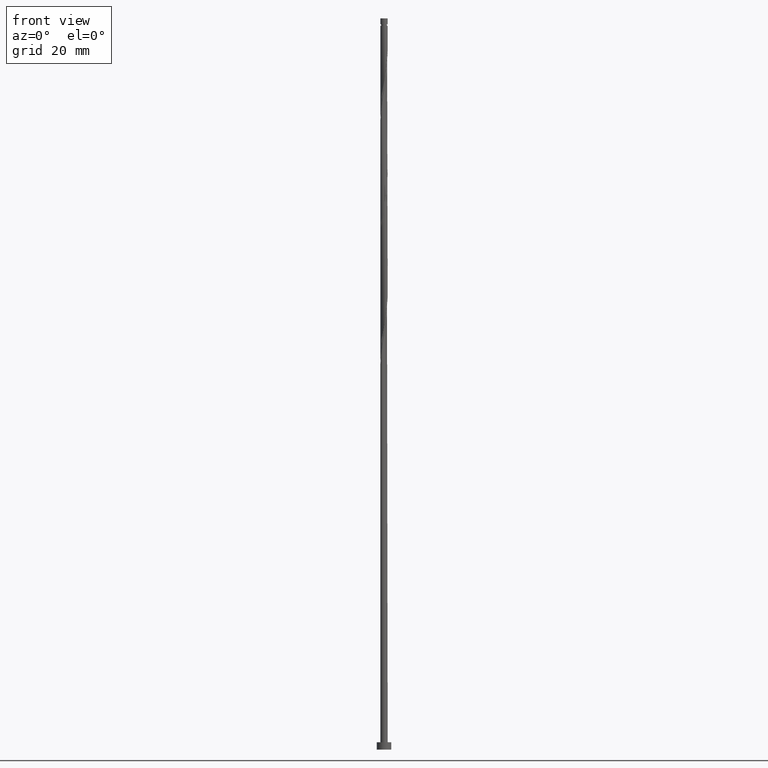
[diagram: clean part render]
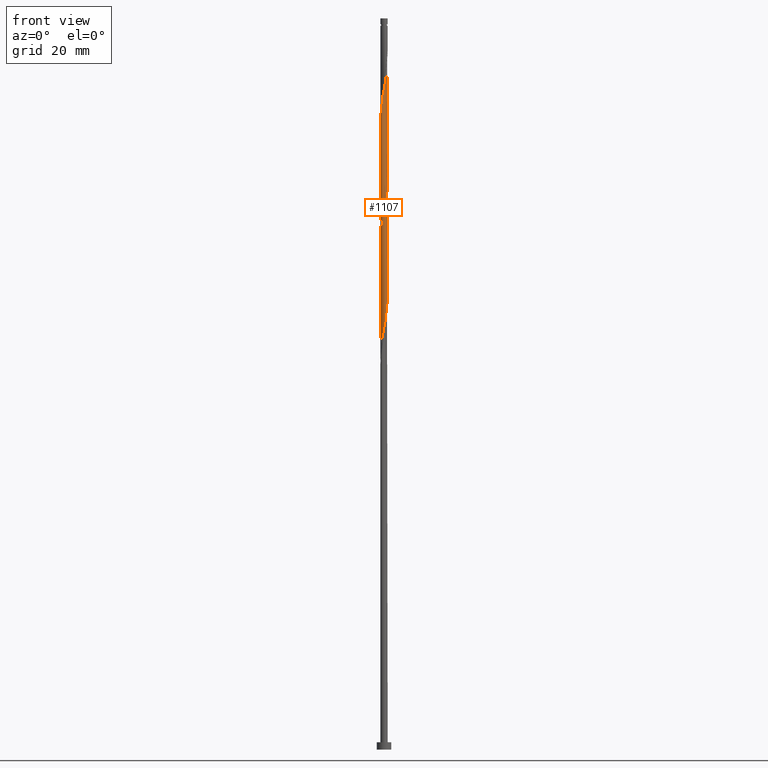
[diagram: same view with one face highlighted and labeled with its STEP entity id]
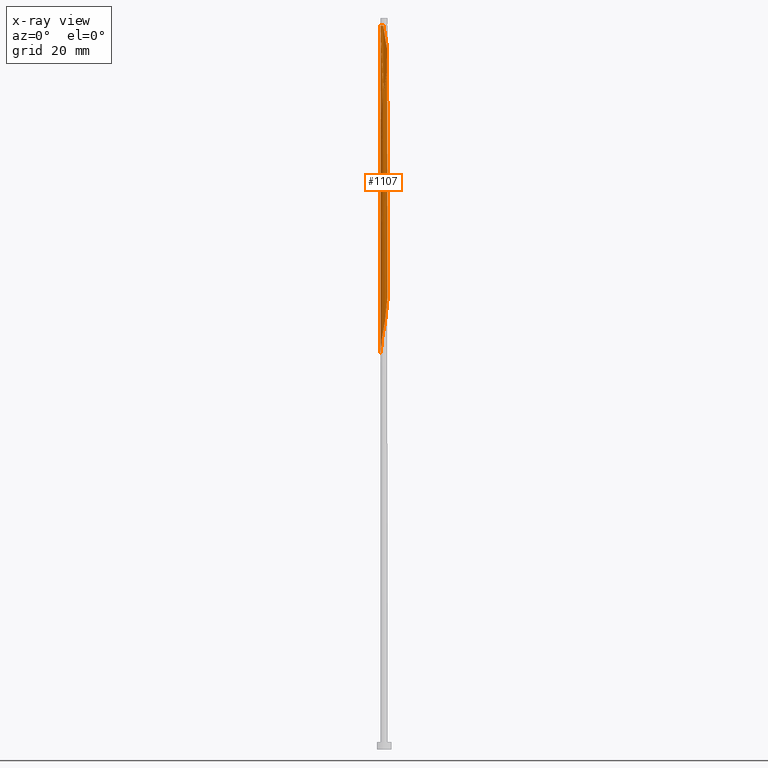
[diagram: x-ray of the same camera — body ghosted, the highlighted face saturated]
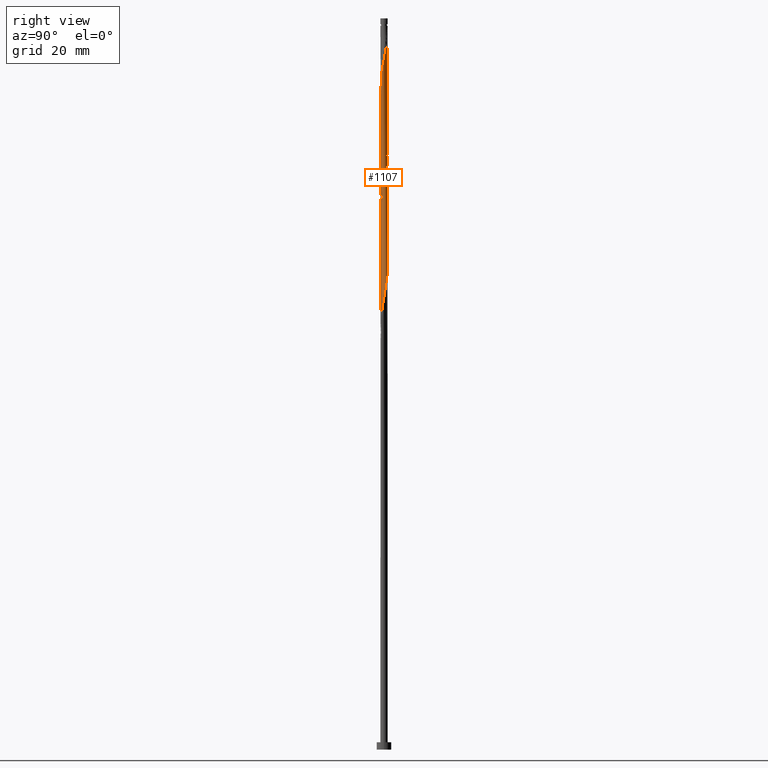
[diagram: same view with one face highlighted and labeled with its STEP entity id]
A machine part, front view. The second image highlights one B-rep face of the part: STEP entity #1107.
The next image is the same camera in x-ray: the body ghosted, the highlighted face saturated — about 0% of this face is hidden behind the body in this view.
A second angle (right view) of the same face is appended — the face is thin or edge-on in the first view.
In plain terms, the highlighted cylindrical surface (bore or boss wall) has radius 1 mm, axis along (-0, -0, -1).
Its self-contained STEP definition (entity closure, byte-faithful):
#5 = CARTESIAN_POINT ( 'NONE',  ( 0.8364044564148269689, -0.5637020182777602306, 154.2596511026889630 ) ) ;
#8 = LINE ( 'NONE', #1142, #980 ) ;
#9 = CARTESIAN_POINT ( 'NONE',  ( -0.1989974874213603084, 0.9800000000002634382, 198.0096511026889630 ) ) ;
#14 = CARTESIAN_POINT ( 'NONE',  ( -0.8336771183575261146, -0.5522521727681060089, 143.8429844360222205 ) ) ;
#29 = ORIENTED_EDGE ( 'NONE', *, *, #607, .F. ) ;
#32 = CARTESIAN_POINT ( 'NONE',  ( 0.8364044564148269689, -0.5637020182777602306, 120.9263177693555917 ) ) ;
#75 = CARTESIAN_POINT ( 'NONE',  ( -0.9538014837673646218, 0.3280169350569821507, 172.3152066582444490 ) ) ;
#84 = CARTESIAN_POINT ( 'NONE',  ( -0.1928297432528254529, 0.9900247826383195004, 166.7596511026889345 ) ) ;
#95 = CARTESIAN_POINT ( 'NONE',  ( 0.5637020182777592314, -0.8364044564148276351, 183.4263177693555633 ) ) ;
#102 = CARTESIAN_POINT ( 'NONE',  ( 0.3280169350569818176, -0.9538014837673647328, 182.0374288804667344 ) ) ;
#117 = CARTESIAN_POINT ( 'NONE',  ( 1.000000000000001554, 5.607669166357607745E-17, 157.4065510912323589 ) ) ;
#118 = VERTEX_POINT ( 'NONE', #1417 ) ;
#122 = CARTESIAN_POINT ( 'NONE',  ( 0.5522521727681063419, 0.8336771183575261146, 193.8429844360222774 ) ) ;
#125 = CARTESIAN_POINT ( 'NONE',  ( 0.9900247826383195004, 0.1928297432528248700, 158.4263177693556486 ) ) ;
#129 = CARTESIAN_POINT ( 'NONE',  ( 0.4424964979548745569, -0.9063824962005139207, 151.4818733249111347 ) ) ;
#136 = CARTESIAN_POINT ( 'NONE',  ( 1.000000000000001776, -0.1005037815259264833, 156.8731247220430305 ) ) ;
#154 = CARTESIAN_POINT ( 'NONE',  ( -0.9063824962005139207, -0.4424964979548745569, 143.1485399915778487 ) ) ;
#162 = CARTESIAN_POINT ( 'NONE',  ( 0.4458594766673714127, 0.8951029700910952958, 163.2874288804666492 ) ) ;
#169 = CARTESIAN_POINT ( 'NONE',  ( 1.006198516232635010, -0.06997803978568657712, 123.7040955471333916 ) ) ;
#177 = VERTEX_POINT ( 'NONE', #1604 ) ;
#185 = AXIS2_PLACEMENT_3D ( 'NONE', #1011, #1517, #1382 ) ;
#202 = CARTESIAN_POINT ( 'NONE',  ( 0.6623368793961497136, 0.7492061519980818263, 128.5652066582444490 ) ) ;
#207 = CARTESIAN_POINT ( 'NONE',  ( 0.9981116494354769220, 0.06142585173356915340, 124.3985399915777634 ) ) ;
#211 = VECTOR ( 'NONE', #764, 1000.000000000000000 ) ;
#215 = CARTESIAN_POINT ( 'NONE',  ( -0.06142585173356963218, 0.9981116494354769220, 166.0652066582445059 ) ) ;
#219 = CARTESIAN_POINT ( 'NONE',  ( -0.3176631206038505462, -0.9482036394194164330, 178.5652066582445059 ) ) ;
#228 = CARTESIAN_POINT ( 'NONE',  ( 0.6620078475813382379, 0.7609717405145381974, 193.1485399915778203 ) ) ;
#242 = EDGE_CURVE ( 'NONE', #1333, #118, #560, .T. ) ;
#243 = CARTESIAN_POINT ( 'NONE',  ( 0.4458594766673704135, -0.8951029700910959619, 182.7318733249111347 ) ) ;
#262 = CARTESIAN_POINT ( 'NONE',  ( -0.9900247826383195004, -0.1928297432528252309, 141.7596511026889630 ) ) ;
#272 = CARTESIAN_POINT ( 'NONE',  ( 1.000000000000001554, 5.607669166357607745E-17, 157.4065510912323589 ) ) ;
#274 = DIRECTION ( 'NONE',  ( -1.000000000000000000, 0.000000000000000000, 0.000000000000000000 ) ) ;
#280 = CARTESIAN_POINT ( 'NONE',  ( -0.7492061519980821593, 0.6623368793961494916, 136.8985399915777919 ) ) ;
#289 = CARTESIAN_POINT ( 'NONE',  ( 0.9482036394194166551, 0.3176631206038493249, 125.7874288804666776 ) ) ;
#318 = CARTESIAN_POINT ( 'NONE',  ( -0.5522521727681061199, 0.8336771183575261146, 168.8429844360221921 ) ) ;
#328 = CARTESIAN_POINT ( 'NONE',  ( 0.3176631206038498245, -0.9482036394194163220, 117.4540955471333206 ) ) ;
#331 = CARTESIAN_POINT ( 'NONE',  ( -1.000000000000001776, -0.1005037815259243739, 172.4795108166681246 ) ) ;
#337 = CARTESIAN_POINT ( 'NONE',  ( -0.8951029700910955178, 0.4458594766673708576, 171.6207622138000204 ) ) ;
#338 = CARTESIAN_POINT ( 'NONE',  ( -1.000000000000001332, -4.411366410867933746E-16, 171.9460844474787677 ) ) ;
#343 = CARTESIAN_POINT ( 'NONE',  ( 0.9799999999999995381, -0.1989974874213341627, 123.0096511026889061 ) ) ;
#345 = CARTESIAN_POINT ( 'NONE',  ( 0.9063824962005133656, -0.4424964979548750010, 186.2040955471333064 ) ) ;
#351 = CARTESIAN_POINT ( 'NONE',  ( 0.7609717405145386415, -0.6620078475813377938, 184.8152066582445059 ) ) ;
#354 = CARTESIAN_POINT ( 'NONE',  ( 0.9482036394194166551, 0.3176631206038493249, 159.1207622138000204 ) ) ;
#364 = CARTESIAN_POINT ( 'NONE',  ( -0.4424964979548748900, 0.9063824962005138097, 134.8152066582444775 ) ) ;
#372 = CARTESIAN_POINT ( 'NONE',  ( -0.6623368793961496026, -0.7492061519980819373, 145.2318733249110778 ) ) ;
#382 = FACE_OUTER_BOUND ( 'NONE', #1402, .T. ) ;
#388 = CARTESIAN_POINT ( 'NONE',  ( -0.3280169350569823727, -0.9538014837673646218, 147.3152066582445059 ) ) ;
#393 = CARTESIAN_POINT ( 'NONE',  ( -0.9538014837673646218, 0.3280169350569821507, 138.9818733249111631 ) ) ;
#399 = CARTESIAN_POINT ( 'NONE',  ( 0.7609717405145394187, 0.6620078475813374608, 161.2040955471334200 ) ) ;
#408 = CARTESIAN_POINT ( 'NONE',  ( 0.6620078475813374608, -0.7609717405145394187, 119.5374288804667202 ) ) ;
#437 = CARTESIAN_POINT ( 'NONE',  ( -0.4458594766673708576, -0.8951029700910955178, 113.2874288804666918 ) ) ;
#441 = CARTESIAN_POINT ( 'NONE',  ( 0.3176631206038506017, 0.9482036394194162110, 195.2318733249111631 ) ) ;
#445 = CARTESIAN_POINT ( 'NONE',  ( -0.9063824962005139207, -0.4424964979548745569, 109.8152066582444775 ) ) ;
#450 = CARTESIAN_POINT ( 'NONE',  ( -0.4424964979548748900, 0.9063824962005138097, 168.1485399915778203 ) ) ;
#453 = CARTESIAN_POINT ( 'NONE',  ( -0.1928297432528255917, -0.9900247826383195004, 179.2596511026889345 ) ) ;
#462 = CARTESIAN_POINT ( 'NONE',  ( -0.06997803978568375993, 1.006198516232634343, 197.3152066582445343 ) ) ;
#507 = EDGE_CURVE ( 'NONE', #1333, #1051, #1182, .T. ) ;
#508 = CYLINDRICAL_SURFACE ( 'NONE', #185, 1.000000000000000000 ) ;
#512 = CARTESIAN_POINT ( 'NONE',  ( 0.3176631206038498245, -0.9482036394194163220, 150.7874288804667060 ) ) ;
#517 = CARTESIAN_POINT ( 'NONE',  ( 0.06997803978568620242, 1.006198516232634566, 165.3707622138000772 ) ) ;
#527 = CARTESIAN_POINT ( 'NONE',  ( 0.5522521727681058978, -0.8336771183575262256, 118.8429844360222489 ) ) ;
#558 = CARTESIAN_POINT ( 'NONE',  ( -0.9981116494354769220, -0.06142585173356951422, 107.7318733249111347 ) ) ;
#560 = LINE ( 'NONE', #1530, #211 ) ;
#566 = CARTESIAN_POINT ( 'NONE',  ( 0.9900247826383195004, 0.1928297432528248700, 125.0929844360222631 ) ) ;
#572 = CARTESIAN_POINT ( 'NONE',  ( -1.000000000000000666, 0.1005037815259310491, 173.5397913887097445 ) ) ;
#583 = CARTESIAN_POINT ( 'NONE',  ( 0.06142585173357048567, 0.9981116494354768109, 196.6207622138000772 ) ) ;
#586 = VERTEX_POINT ( 'NONE', #1236 ) ;
#589 = CARTESIAN_POINT ( 'NONE',  ( -0.6620078475813377938, -0.7609717405145386415, 176.4818733249111347 ) ) ;
#600 = CARTESIAN_POINT ( 'NONE',  ( 0.9981116494354769220, 0.06142585173356915340, 157.7318733249111347 ) ) ;
#603 = CARTESIAN_POINT ( 'NONE',  ( 0.7492061519980819373, -0.6623368793961497136, 153.5652066582443638 ) ) ;
#607 = EDGE_CURVE ( 'NONE', #970, #118, #835, .T. ) ;
#611 = CARTESIAN_POINT ( 'NONE',  ( 0.06142585173356921585, -0.9981116494354769220, 149.3985399915777634 ) ) ;
#614 = CARTESIAN_POINT ( 'NONE',  ( 0.000000000000000000, 0.000000000000000000, 198.0096511026889345 ) ) ;
#617 = CARTESIAN_POINT ( 'NONE',  ( -0.7609717405145394187, -0.6620078475813375718, 144.5374288804667344 ) ) ;
#623 = CARTESIAN_POINT ( 'NONE',  ( -0.9482036394194163220, -0.3176631206038499355, 142.4540955471333348 ) ) ;
#632 = CARTESIAN_POINT ( 'NONE',  ( -0.6620078475813376828, 0.7609717405145390856, 169.5374288804666776 ) ) ;
#637 = CARTESIAN_POINT ( 'NONE',  ( 0.9063824962005141428, 0.4424964979548740018, 126.4818733249111204 ) ) ;
#644 = ORIENTED_EDGE ( 'NONE', *, *, #1573, .T. ) ;
#651 = EDGE_CURVE ( 'NONE', #177, #970, #1014, .T. ) ;
#673 = CARTESIAN_POINT ( 'NONE',  ( 0.8336771183575261146, 0.5522521727681060089, 127.1763177693555491 ) ) ;
#686 = CARTESIAN_POINT ( 'NONE',  ( -0.7609717405145394187, -0.6620078475813375718, 111.2040955471333774 ) ) ;
#692 = CARTESIAN_POINT ( 'NONE',  ( 0.1928297432528249533, -0.9900247826383195004, 116.7596511026889345 ) ) ;
#696 = CARTESIAN_POINT ( 'NONE',  ( -0.06142585173356988199, -0.9981116494354768109, 179.9540955471333348 ) ) ;
#705 = CARTESIAN_POINT ( 'NONE',  ( 0.9482036394194164330, -0.3176631206038506017, 186.8985399915777919 ) ) ;
#711 = CARTESIAN_POINT ( 'NONE',  ( -0.9799999999999995381, -0.1989974874213340239, 173.0096511026889630 ) ) ;
#715 = ORIENTED_EDGE ( 'NONE', *, *, #1040, .T. ) ;
#719 = CARTESIAN_POINT ( 'NONE',  ( 0.9900247826383192784, -0.1928297432528260358, 187.5929844360222774 ) ) ;
#732 = CARTESIAN_POINT ( 'NONE',  ( -0.8951029700910955178, 0.4458594766673708576, 138.2874288804666207 ) ) ;
#741 = CARTESIAN_POINT ( 'NONE',  ( 1.000000000000001554, 5.607669166357607745E-17, 157.4065510912323589 ) ) ;
#746 = CARTESIAN_POINT ( 'NONE',  ( 0.6620078475813374608, -0.7609717405145394187, 152.8707622137999920 ) ) ;
#751 = CARTESIAN_POINT ( 'NONE',  ( -0.5522521727681061199, 0.8336771183575261146, 135.5096511026889345 ) ) ;
#761 = CARTESIAN_POINT ( 'NONE',  ( 0.9538014837673641777, -0.3280169350569828168, 122.3152066582445059 ) ) ;
#764 = DIRECTION ( 'NONE',  ( -0.000000000000000000, -0.000000000000000000, -1.000000000000000000 ) ) ;
#800 = CARTESIAN_POINT ( 'NONE',  ( -0.9799999999999995381, 0.1989974874213340517, 173.0096511026889345 ) ) ;
#805 = CARTESIAN_POINT ( 'NONE',  ( -0.5637020182777598976, -0.8364044564148271910, 112.5929844360222916 ) ) ;
#816 = CARTESIAN_POINT ( 'NONE',  ( -0.8364044564148271910, 0.5637020182777597865, 170.9263177693556486 ) ) ;
#818 = CARTESIAN_POINT ( 'NONE',  ( -0.9538014837673647328, -0.3280169350569818176, 173.7040955471334200 ) ) ;
#822 = CARTESIAN_POINT ( 'NONE',  ( -1.000000000000001332, -0.03074195165766996016, 107.5697147792604937 ) ) ;
#833 = CARTESIAN_POINT ( 'NONE',  ( 0.7492061519980829365, 0.6623368793961487144, 192.4540955471333632 ) ) ;
#835 =( BOUNDED_CURVE ( )  B_SPLINE_CURVE ( 2, ( #272, #136, #1009, #1249, #1136, #5, #603, #746, #884, #129, #512, #1513, #611, #1494, #984, #388, #1521, #878, #372, #617, #14, #154, #623, #262, #1141, #858, #1362, #393, #732, #1384, #280, #1487, #751, #364, #1264, #848, #1357, #1148, #1155, #1394, #946, #1439, #202, #892, #673, #637, #289, #566, #207, #169, #343, #761, #1325, #32, #1274, #408, #527, #1202, #328, #692, #1584, #1073, #937, #1186, #437, #805, #1317, #686, #1077, #445, #1447, #1036, #558, #822, #1064 ),
 .UNSPECIFIED., .F., .T. ) 
 B_SPLINE_CURVE_WITH_KNOTS ( ( 3, 2, 2, 2, 2, 2, 2, 2, 2, 2, 2, 2, 2, 2, 2, 2, 2, 2, 2, 2, 2, 2, 2, 2, 2, 2, 2, 2, 2, 2, 2, 2, 2, 2, 2, 2, 2, 3 ),
 ( 0.5545317669814459061, 0.5625000000000000000, 0.5729166666666666297, 0.5833333333333333703, 0.5937500000000000000, 0.6041666666666666297, 0.6145833333333333703, 0.6250000000000000000, 0.6354166666666666297, 0.6458333333333333703, 0.6562500000000000000, 0.6666666666666666297, 0.6770833333333333703, 0.6875000000000000000, 0.6979166666666666297, 0.7083333333333333703, 0.7187500000000000000, 0.7291666666666666297, 0.7395833333333333703, 0.7500000000000000000, 0.7604166666666666297, 0.7708333333333333703, 0.7812500000000000000, 0.7916666666666666297, 0.8020833333333333703, 0.8125000000000000000, 0.8229166666666666297, 0.8333333333333333703, 0.8437500000000000000, 0.8541666666666666297, 0.8645833333333333703, 0.8750000000000000000, 0.8854166666666666297, 0.8958333333333333703, 0.9062500000000000000, 0.9166666666666667407, 0.9270833333333334814, 0.9295317669814457950 ),
 .UNSPECIFIED. ) 
 CURVE ( )  GEOMETRIC_REPRESENTATION_ITEM ( )  RATIONAL_B_SPLINE_CURVE ( ( 0.9062941362546322877, 0.9031415850403359258, 0.9090909090909117252, 0.9013135103398300929, 0.9090909090909117252, 0.9013135103398300929, 0.9090909090909117252, 0.9013135103398300929, 0.9090909090909117252, 0.9013135103398300929, 0.9090909090909117252, 0.9013135103398300929, 0.9090909090909117252, 0.9013135103398300929, 0.9090909090909117252, 0.9013135103398300929, 0.9090909090909117252, 0.9013135103398300929, 0.9090909090909117252, 0.9013135103398300929, 0.9090909090909117252, 0.9013135103398300929, 0.9090909090909117252, 0.9013135103398300929, 0.9090909090909117252, 0.9013135103398300929, 0.9090909090909117252, 0.9013135103398300929, 0.9090909090909117252, 0.9013135103398300929, 0.9090909090909117252, 0.9013135103398300929, 0.9090909090909117252, 0.9013135103398300929, 0.9090909090909117252, 0.9013135103398300929, 0.9090909090909117252, 0.9013135103398300929, 0.9090909090909117252, 0.9013135103398300929, 0.9090909090909117252, 0.9013135103398300929, 0.9090909090909117252, 0.9013135103398300929, 0.9090909090909117252, 0.9013135103398300929, 0.9090909090909117252, 0.9013135103398300929, 0.9090909090909117252, 0.9013135103398300929, 0.9090909090909117252, 0.9013135103398300929, 0.9090909090909117252, 0.9013135103398300929, 0.9090909090909117252, 0.9013135103398300929, 0.9090909090909117252, 0.9013135103398300929, 0.9090909090909117252, 0.9013135103398300929, 0.9090909090909117252, 0.9013135103398300929, 0.9090909090909117252, 0.9013135103398300929, 0.9090909090909117252, 0.9013135103398300929, 0.9090909090909117252, 0.9013135103398300929, 0.9090909090909117252, 0.9013135103398300929, 0.9090909090909117252, 0.9013135103398300929, 0.9090909090909117252, 0.9072628343904057813, 0.9062941362546323987 ) ) 
 REPRESENTATION_ITEM ( '' )  );
#842 = CARTESIAN_POINT ( 'NONE',  ( -0.8364044564148275240, -0.5637020182777594535, 175.0929844360222774 ) ) ;
#845 = ORIENTED_EDGE ( 'NONE', *, *, #1393, .F. ) ;
#848 = CARTESIAN_POINT ( 'NONE',  ( -0.1928297432528254529, 0.9900247826383195004, 133.4263177693556202 ) ) ;
#858 = CARTESIAN_POINT ( 'NONE',  ( -1.006198516232635010, 0.06997803978568647998, 140.3707622138000204 ) ) ;
#878 = CARTESIAN_POINT ( 'NONE',  ( -0.5637020182777598976, -0.8364044564148271910, 145.9263177693555917 ) ) ;
#884 = CARTESIAN_POINT ( 'NONE',  ( 0.5522521727681058978, -0.8336771183575262256, 152.1763177693556202 ) ) ;
#892 = CARTESIAN_POINT ( 'NONE',  ( 0.7609717405145394187, 0.6620078475813374608, 127.8707622138000630 ) ) ;
#902 = CARTESIAN_POINT ( 'NONE',  ( 0.8336771183575261146, 0.5522521727681060089, 160.5096511026888777 ) ) ;
#922 = CIRCLE ( 'NONE', #1211, 0.9999999999999878986 ) ;
#937 = CARTESIAN_POINT ( 'NONE',  ( -0.1989974874213340794, -0.9799999999999995381, 114.6763177693555775 ) ) ;
#941 = CARTESIAN_POINT ( 'NONE',  ( 0.1928297432528261190, 0.9900247826383192784, 195.9263177693555917 ) ) ;
#946 = CARTESIAN_POINT ( 'NONE',  ( 0.4458594766673714127, 0.8951029700910952958, 129.9540955471333632 ) ) ;
#953 = CARTESIAN_POINT ( 'NONE',  ( -0.3176631206038499911, 0.9482036394194163220, 167.4540955471333348 ) ) ;
#954 = CARTESIAN_POINT ( 'NONE',  ( 0.9799999999999995381, 0.1989974874213338851, 189.6763177693555633 ) ) ;
#964 = CARTESIAN_POINT ( 'NONE',  ( 0.6623368793961489365, -0.7492061519980826034, 184.1207622138000488 ) ) ;
#970 = VERTEX_POINT ( 'NONE', #741 ) ;
#974 = CARTESIAN_POINT ( 'NONE',  ( -0.8951029700910957398, -0.4458594766673707466, 174.3985399915777919 ) ) ;
#980 = VECTOR ( 'NONE', #1004, 1000.000000000000000 ) ;
#984 = CARTESIAN_POINT ( 'NONE',  ( -0.1989974874213340794, -0.9799999999999995381, 148.0096511026889345 ) ) ;
#1004 = DIRECTION ( 'NONE',  ( -0.000000000000000000, -0.000000000000000000, -1.000000000000000000 ) ) ;
#1009 = CARTESIAN_POINT ( 'NONE',  ( 0.9799999999999995381, -0.1989974874213341627, 156.3429844360221921 ) ) ;
#1011 = CARTESIAN_POINT ( 'NONE',  ( 0.000000000000000000, 0.000000000000000000, 200.0000000000000000 ) ) ;
#1014 =( BOUNDED_CURVE ( )  B_SPLINE_CURVE ( 2, ( #1591, #572, #800, #75, #337, #816, #1434, #632, #318, #450, #953, #84, #215, #517, #1577, #1458, #162, #1025, #1528, #399, #902, #1225, #354, #125, #600, #1239, #117 ),
 .UNSPECIFIED., .F., .T. ) 
 B_SPLINE_CURVE_WITH_KNOTS ( ( 3, 2, 2, 2, 2, 2, 2, 2, 2, 2, 2, 2, 2, 3 ),
 ( 0.4295317669814462391, 0.4375000000000000000, 0.4479166666666666852, 0.4583333333333333148, 0.4687500000000000000, 0.4791666666666666852, 0.4895833333333333148, 0.5000000000000000000, 0.5104166666666666297, 0.5208333333333333703, 0.5312500000000000000, 0.5416666666666666297, 0.5520833333333333703, 0.5545317669814459061 ),
 .UNSPECIFIED. ) 
 CURVE ( )  GEOMETRIC_REPRESENTATION_ITEM ( )  RATIONAL_B_SPLINE_CURVE ( ( 0.9062941362546321766, 0.9031415850403363699, 0.9090909090909117252, 0.9013135103398300929, 0.9090909090909117252, 0.9013135103398300929, 0.9090909090909117252, 0.9013135103398300929, 0.9090909090909117252, 0.9013135103398300929, 0.9090909090909117252, 0.9013135103398300929, 0.9090909090909117252, 0.9013135103398300929, 0.9090909090909117252, 0.9013135103398300929, 0.9090909090909117252, 0.9013135103398300929, 0.9090909090909117252, 0.9013135103398300929, 0.9090909090909117252, 0.9013135103398300929, 0.9090909090909117252, 0.9013135103398300929, 0.9090909090909117252, 0.9072628343904056702, 0.9062941362546322877 ) ) 
 REPRESENTATION_ITEM ( '' )  );
#1025 = CARTESIAN_POINT ( 'NONE',  ( 0.5637020182777602306, 0.8364044564148269689, 162.5929844360222489 ) ) ;
#1036 = CARTESIAN_POINT ( 'NONE',  ( -0.9900247826383195004, -0.1928297432528252309, 108.4263177693556202 ) ) ;
#1040 = EDGE_CURVE ( 'NONE', #1203, #1051, #922, .T. ) ;
#1051 = VERTEX_POINT ( 'NONE', #9 ) ;
#1064 = CARTESIAN_POINT ( 'NONE',  ( -1.000000000000001554, -2.990756888724057300E-16, 107.4065510912324015 ) ) ;
#1068 = CARTESIAN_POINT ( 'NONE',  ( 0.4424964979548751121, 0.9063824962005133656, 194.5374288804667344 ) ) ;
#1073 = CARTESIAN_POINT ( 'NONE',  ( -0.06997803978568652161, -1.006198516232635010, 115.3707622138000630 ) ) ;
#1077 = CARTESIAN_POINT ( 'NONE',  ( -0.8336771183575261146, -0.5522521727681060089, 110.5096511026888919 ) ) ;
#1083 = LINE ( 'NONE', #1223, #1450 ) ;
#1089 = CARTESIAN_POINT ( 'NONE',  ( 0.06997803978568582772, -1.006198516232634343, 180.6485399915777919 ) ) ;
#1095 = ORIENTED_EDGE ( 'NONE', *, *, #1573, .F. ) ;
#1107 = ADVANCED_FACE ( 'NONE', ( #382 ), #508, .T. ) ;
#1131 = DIRECTION ( 'NONE',  ( -0.000000000000000000, -0.000000000000000000, -1.000000000000000000 ) ) ;
#1136 = CARTESIAN_POINT ( 'NONE',  ( 0.8951029700910952958, -0.4458594766673714127, 154.9540955471333348 ) ) ;
#1141 = CARTESIAN_POINT ( 'NONE',  ( -0.9981116494354769220, -0.06142585173356951422, 141.0652066582444775 ) ) ;
#1142 = CARTESIAN_POINT ( 'NONE',  ( 1.000000000000000000, 1.224646799147353207E-16, 200.0000000000000000 ) ) ;
#1148 = CARTESIAN_POINT ( 'NONE',  ( 0.06997803978568620242, 1.006198516232634566, 132.0374288804667060 ) ) ;
#1155 = CARTESIAN_POINT ( 'NONE',  ( 0.1989974874213342459, 0.9799999999999995381, 131.3429844360222489 ) ) ;
#1182 =( BOUNDED_CURVE ( )  B_SPLINE_CURVE ( 2, ( #338, #331, #711, #818, #974, #842, #1204, #589, #1611, #1349, #219, #453, #696, #1089, #1478, #102, #243, #95, #964, #351, #1321, #345, #705, #719, #1580, #1221, #954, #1228, #1588, #1603, #833, #228, #122, #1068, #441, #941, #583, #462, #1442 ),
 .UNSPECIFIED., .F., .T. ) 
 B_SPLINE_CURVE_WITH_KNOTS ( ( 3, 2, 2, 2, 2, 2, 2, 2, 2, 2, 2, 2, 2, 2, 2, 2, 2, 2, 2, 3 ),
 ( 0.5545317669814456840, 0.5625000000000000000, 0.5729166666666667407, 0.5833333333333332593, 0.5937500000000000000, 0.6041666666666667407, 0.6145833333333332593, 0.6250000000000000000, 0.6354166666666667407, 0.6458333333333332593, 0.6562499999999998890, 0.6666666666666667407, 0.6770833333333331483, 0.6874999999999998890, 0.6979166666666666297, 0.7083333333333331483, 0.7187499999999998890, 0.7291666666666666297, 0.7395833333333331483, 0.7499999999999998890 ),
 .UNSPECIFIED. ) 
 CURVE ( )  GEOMETRIC_REPRESENTATION_ITEM ( )  RATIONAL_B_SPLINE_CURVE ( ( 0.9062941362546428348, 0.9031415850403463619, 0.9090909090909220502, 0.9013135103398405290, 0.9090909090909220502, 0.9013135103398405290, 0.9090909090909220502, 0.9013135103398405290, 0.9090909090909220502, 0.9013135103398405290, 0.9090909090909220502, 0.9013135103398405290, 0.9090909090909220502, 0.9013135103398405290, 0.9090909090909220502, 0.9013135103398405290, 0.9090909090909220502, 0.9013135103398405290, 0.9090909090909220502, 0.9013135103398405290, 0.9090909090909220502, 0.9013135103398405290, 0.9090909090909220502, 0.9013135103398405290, 0.9090909090909220502, 0.9013135103398405290, 0.9090909090909220502, 0.9013135103398405290, 0.9090909090909220502, 0.9013135103398405290, 0.9090909090909220502, 0.9013135103398405290, 0.9090909090909220502, 0.9013135103398405290, 0.9090909090909220502, 0.9013135103398405290, 0.9090909090909220502, 0.9013135103398405290, 0.9090909090909220502 ) ) 
 REPRESENTATION_ITEM ( '' )  );
#1186 = CARTESIAN_POINT ( 'NONE',  ( -0.3280169350569823727, -0.9538014837673646218, 113.9818733249111631 ) ) ;
#1202 = CARTESIAN_POINT ( 'NONE',  ( 0.4424964979548745569, -0.9063824962005139207, 118.1485399915778061 ) ) ;
#1203 = VERTEX_POINT ( 'NONE', #1565 ) ;
#1204 = CARTESIAN_POINT ( 'NONE',  ( -0.7492061519980823814, -0.6623368793961491585, 175.7874288804667344 ) ) ;
#1211 = AXIS2_PLACEMENT_3D ( 'NONE', #614, #1131, #274 ) ;
#1221 = CARTESIAN_POINT ( 'NONE',  ( 1.006198516232634343, 0.06997803978568528649, 188.9818733249111347 ) ) ;
#1223 = CARTESIAN_POINT ( 'NONE',  ( -1.000000000000000000, 0.000000000000000000, 200.0000000000000000 ) ) ;
#1225 = CARTESIAN_POINT ( 'NONE',  ( 0.9063824962005141428, 0.4424964979548740018, 159.8152066582445059 ) ) ;
#1228 = CARTESIAN_POINT ( 'NONE',  ( 0.9538014837673647328, 0.3280169350569816511, 190.3707622138000488 ) ) ;
#1236 = CARTESIAN_POINT ( 'NONE',  ( 1.000000000000000000, 1.224646799147353207E-16, 198.0096511026889630 ) ) ;
#1239 = CARTESIAN_POINT ( 'NONE',  ( 1.000000000000001554, 0.03074195165766828095, 157.5697147792605222 ) ) ;
#1249 = CARTESIAN_POINT ( 'NONE',  ( 0.9538014837673641777, -0.3280169350569828168, 155.6485399915777634 ) ) ;
#1264 = CARTESIAN_POINT ( 'NONE',  ( -0.3176631206038499911, 0.9482036394194163220, 134.1207622138000204 ) ) ;
#1274 = CARTESIAN_POINT ( 'NONE',  ( 0.7492061519980819373, -0.6623368793961497136, 120.2318733249111347 ) ) ;
#1317 = CARTESIAN_POINT ( 'NONE',  ( -0.6623368793961496026, -0.7492061519980819373, 111.8985399915777919 ) ) ;
#1321 = CARTESIAN_POINT ( 'NONE',  ( 0.8336771183575260036, -0.5522521727681066750, 185.5096511026889345 ) ) ;
#1325 = CARTESIAN_POINT ( 'NONE',  ( 0.8951029700910952958, -0.4458594766673714127, 121.6207622138000062 ) ) ;
#1330 = CARTESIAN_POINT ( 'NONE',  ( -1.000000000000001332, -4.411366410867933746E-16, 171.9460844474787677 ) ) ;
#1333 = VERTEX_POINT ( 'NONE', #1330 ) ;
#1349 = CARTESIAN_POINT ( 'NONE',  ( -0.4424964979548750010, -0.9063824962005134767, 177.8707622137999920 ) ) ;
#1357 = CARTESIAN_POINT ( 'NONE',  ( -0.06142585173356963218, 0.9981116494354769220, 132.7318733249111347 ) ) ;
#1362 = CARTESIAN_POINT ( 'NONE',  ( -0.9799999999999995381, 0.1989974874213340517, 139.6763177693555349 ) ) ;
#1368 = ORIENTED_EDGE ( 'NONE', *, *, #651, .F. ) ;
#1382 = DIRECTION ( 'NONE',  ( -1.000000000000000000, 0.000000000000000000, 0.000000000000000000 ) ) ;
#1384 = CARTESIAN_POINT ( 'NONE',  ( -0.8364044564148271910, 0.5637020182777597865, 137.5929844360222774 ) ) ;
#1393 = EDGE_CURVE ( 'NONE', #1203, #177, #1083, .T. ) ;
#1394 = CARTESIAN_POINT ( 'NONE',  ( 0.3280169350569829279, 0.9538014837673640667, 130.6485399915778487 ) ) ;
#1402 = EDGE_LOOP ( 'NONE', ( #845, #715, #1601, #1593, #29, #1095, #644, #1368 ) ) ;
#1417 = CARTESIAN_POINT ( 'NONE',  ( -1.000000000000001554, -2.990756888724057300E-16, 107.4065510912324015 ) ) ;
#1434 = CARTESIAN_POINT ( 'NONE',  ( -0.7492061519980821593, 0.6623368793961494916, 170.2318733249110778 ) ) ;
#1439 = CARTESIAN_POINT ( 'NONE',  ( 0.5637020182777602306, 0.8364044564148269689, 129.2596511026889061 ) ) ;
#1442 = CARTESIAN_POINT ( 'NONE',  ( -0.1989974874213603084, 0.9800000000002634382, 198.0096511026889345 ) ) ;
#1447 = CARTESIAN_POINT ( 'NONE',  ( -0.9482036394194163220, -0.3176631206038499355, 109.1207622138000062 ) ) ;
#1450 = VECTOR ( 'NONE', #1599, 1000.000000000000000 ) ;
#1458 = CARTESIAN_POINT ( 'NONE',  ( 0.3280169350569829279, 0.9538014837673640667, 163.9818733249112199 ) ) ;
#1478 = CARTESIAN_POINT ( 'NONE',  ( 0.1989974874213339129, -0.9799999999999995381, 181.3429844360222774 ) ) ;
#1487 = CARTESIAN_POINT ( 'NONE',  ( -0.6620078475813376828, 0.7609717405145390856, 136.2040955471333632 ) ) ;
#1494 = CARTESIAN_POINT ( 'NONE',  ( -0.06997803978568652161, -1.006198516232635010, 148.7040955471333916 ) ) ;
#1513 = CARTESIAN_POINT ( 'NONE',  ( 0.1928297432528249533, -0.9900247826383195004, 150.0929844360222489 ) ) ;
#1517 = DIRECTION ( 'NONE',  ( -0.000000000000000000, -0.000000000000000000, -1.000000000000000000 ) ) ;
#1521 = CARTESIAN_POINT ( 'NONE',  ( -0.4458594766673708576, -0.8951029700910955178, 146.6207622137999920 ) ) ;
#1528 = CARTESIAN_POINT ( 'NONE',  ( 0.6623368793961497136, 0.7492061519980818263, 161.8985399915777919 ) ) ;
#1530 = CARTESIAN_POINT ( 'NONE',  ( -1.000000000000000000, 0.000000000000000000, 200.0000000000000000 ) ) ;
#1565 = CARTESIAN_POINT ( 'NONE',  ( -0.9999999999999878986, 0.000000000000000000, 198.0096511026889345 ) ) ;
#1573 = EDGE_CURVE ( 'NONE', #586, #970, #8, .T. ) ;
#1577 = CARTESIAN_POINT ( 'NONE',  ( 0.1989974874213342459, 0.9799999999999995381, 164.6763177693556202 ) ) ;
#1580 = CARTESIAN_POINT ( 'NONE',  ( 0.9981116494354768109, -0.06142585173357042322, 188.2874288804667344 ) ) ;
#1584 = CARTESIAN_POINT ( 'NONE',  ( 0.06142585173356921585, -0.9981116494354769220, 116.0652066582444490 ) ) ;
#1588 = CARTESIAN_POINT ( 'NONE',  ( 0.8951029700910959619, 0.4458594766673704135, 191.0652066582445343 ) ) ;
#1591 = CARTESIAN_POINT ( 'NONE',  ( -1.000000000000001554, -6.392742849647671547E-16, 174.0732177578989592 ) ) ;
#1593 = ORIENTED_EDGE ( 'NONE', *, *, #242, .T. ) ;
#1599 = DIRECTION ( 'NONE',  ( -0.000000000000000000, -0.000000000000000000, -1.000000000000000000 ) ) ;
#1601 = ORIENTED_EDGE ( 'NONE', *, *, #507, .F. ) ;
#1603 = CARTESIAN_POINT ( 'NONE',  ( 0.8364044564148276351, 0.5637020182777592314, 191.7596511026888777 ) ) ;
#1604 = CARTESIAN_POINT ( 'NONE',  ( -1.000000000000001554, -6.392742849647671547E-16, 174.0732177578989592 ) ) ;
#1611 = CARTESIAN_POINT ( 'NONE',  ( -0.5522521727681061199, -0.8336771183575262256, 177.1763177693556202 ) ) ;